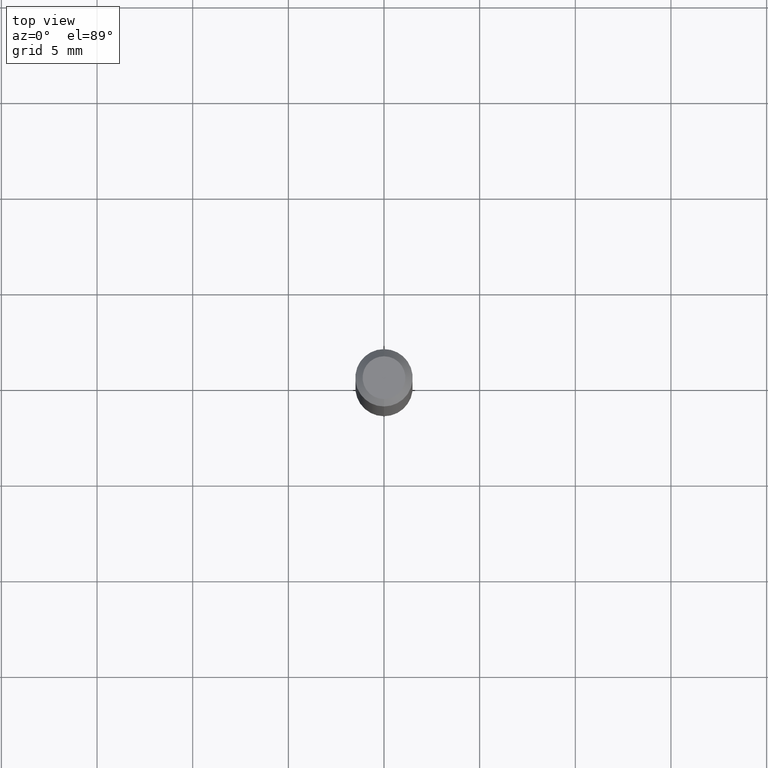
[diagram: clean part render]
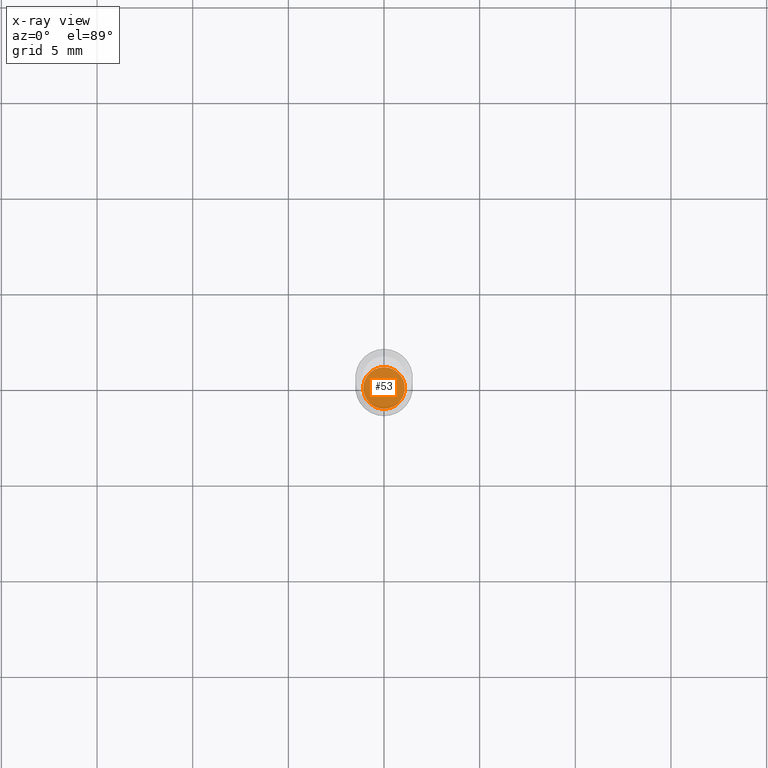
[diagram: x-ray — body ghosted, one internal face saturated and labeled with its STEP entity id]
A machine part, top view, then the same camera in x-ray: the body is ghosted and one INTERNAL B-rep face — a face not visible from any outside direction — is saturated and labeled: STEP entity #53.
In plain terms, the highlighted planar face has unit normal (-0, 0, 1).
Its self-contained STEP definition (entity closure, byte-faithful):
#19 = ORIENTED_EDGE ( 'NONE', *, *, #338, .F. ) ;
#22 = AXIS2_PLACEMENT_3D ( 'NONE', #374, #188, #61 ) ;
#46 = ORIENTED_EDGE ( 'NONE', *, *, #197, .F. ) ;
#53 = ADVANCED_FACE ( 'NONE', ( #174 ), #327, .F. ) ;
#61 = DIRECTION ( 'NONE',  ( -6.982962677686265922E-15, -1.000000000000000000, 6.382822415103419870E-15 ) ) ;
#81 = CIRCLE ( 'NONE', #107, 0.04279999999999999083 ) ;
#107 = AXIS2_PLACEMENT_3D ( 'NONE', #331, #369, #175 ) ;
#127 = CARTESIAN_POINT ( 'NONE',  ( -2.988708026049418867E-16, -0.04280000000000431376, -1.236299999999999288 ) ) ;
#130 = CARTESIAN_POINT ( 'NONE',  ( 3.023276796434711539E-29, -4.316598987765154055E-15, -1.236299999999999510 ) ) ;
#174 = FACE_OUTER_BOUND ( 'NONE', #370, .T. ) ;
#175 = DIRECTION ( 'NONE',  ( -6.982962677686265922E-15, -1.000000000000000000, 6.382822415103419870E-15 ) ) ;
#188 = DIRECTION ( 'NONE',  ( -2.445423276255530617E-29, 3.491546540293744130E-15, 1.000000000000000000 ) ) ;
#197 = EDGE_CURVE ( 'NONE', #284, #455, #354, .T. ) ;
#239 = DIRECTION ( 'NONE',  ( -6.982962677686265922E-15, -1.000000000000000000, 3.491546540293744525E-15 ) ) ;
#284 = VERTEX_POINT ( 'NONE', #127 ) ;
#327 = PLANE ( 'NONE',  #501 ) ;
#331 = CARTESIAN_POINT ( 'NONE',  ( 3.023276796434711539E-29, -4.316598987765154055E-15, -1.236299999999999510 ) ) ;
#338 = EDGE_CURVE ( 'NONE', #455, #284, #81, .T. ) ;
#354 = CIRCLE ( 'NONE', #22, 0.04279999999999999083 ) ;
#367 = CARTESIAN_POINT ( 'NONE',  ( 3.058886477447519585E-16, 0.04279999999999567484, -1.236299999999999955 ) ) ;
#369 = DIRECTION ( 'NONE',  ( -2.445423276255530617E-29, 3.491546540293744130E-15, 1.000000000000000000 ) ) ;
#370 = EDGE_LOOP ( 'NONE', ( #46, #19 ) ) ;
#374 = CARTESIAN_POINT ( 'NONE',  ( 3.023276796434711539E-29, -4.316598987765154055E-15, -1.236299999999999510 ) ) ;
#455 = VERTEX_POINT ( 'NONE', #367 ) ;
#481 = DIRECTION ( 'NONE',  ( -2.445423276255530056E-29, 3.491546540293744525E-15, 1.000000000000000000 ) ) ;
#501 = AXIS2_PLACEMENT_3D ( 'NONE', #130, #481, #239 ) ;